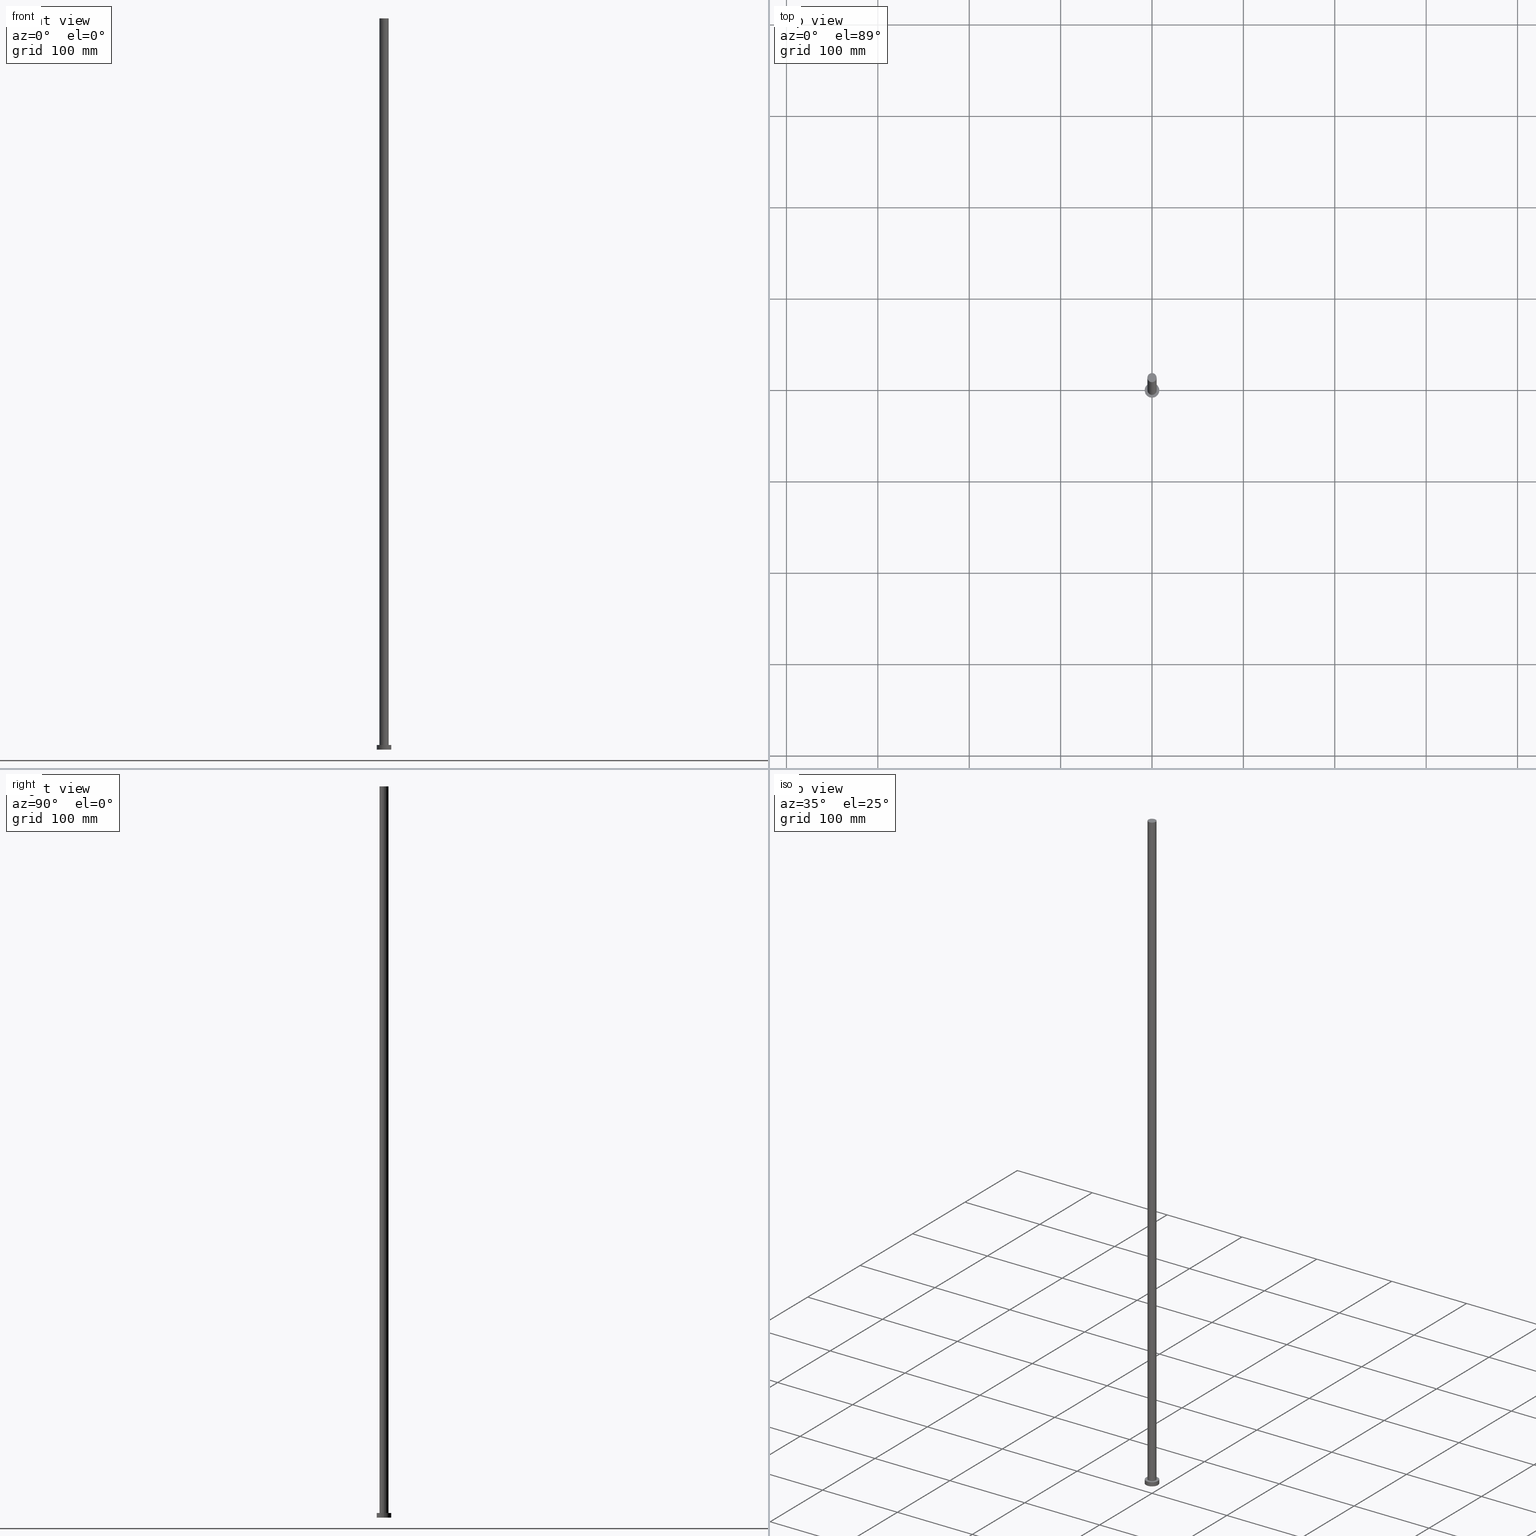
[diagram: canonical four-view strip — front | top / right | iso, engineering-drawing reading convention]
A machine part, canonical four-view strip (front | top / right | iso — engineering-drawing reading convention). The complete STEP part file that produces these views, byte-faithful:
ISO-10303-21;
HEADER;
FILE_DESCRIPTION (( 'STEP AP203' ),
    '1' );
FILE_NAME ('e4b6.STEP',
    '2023-02-13T12:05:35',
    ( '' ),
    ( '' ),
    'SwSTEP 2.0',
    'SolidWorks 2019',
    '' );
FILE_SCHEMA (( 'CONFIG_CONTROL_DESIGN' ));
ENDSEC;

DATA;
#1 = SECURITY_CLASSIFICATION_LEVEL ( 'unclassified' ) ;
#2 = ORIENTED_EDGE ( 'NONE', *, *, #237, .T. ) ;
#3 = DATE_AND_TIME ( #218, #13 ) ;
#4 = APPROVAL_STATUS ( 'not_yet_approved' ) ;
#5 = ORIENTED_EDGE ( 'NONE', *, *, #134, .T. ) ;
#6 = DATE_AND_TIME ( #7, #206 ) ;
#7 = CALENDAR_DATE ( 2023, 13, 2 ) ;
#8 = ADVANCED_FACE ( 'NONE', ( #180 ), #86, .T. ) ;
#9 = VERTEX_POINT ( 'NONE', #63 ) ;
#10 = PRODUCT ( 'e4b6', 'e4b6', '', ( #81 ) ) ;
#11 = DIRECTION ( 'NONE',  ( -1.000000000000000000, 0.000000000000000000, 0.000000000000000000 ) ) ;
#12 = PRODUCT_DEFINITION ( 'NEZN�M�', '', #161, #130 ) ;
#13 = LOCAL_TIME ( 13, 5, 35.00000000000000000, #163 ) ;
#14 = APPROVAL ( #4, 'NEUR�EN�' ) ;
#15 = ORIENTED_EDGE ( 'NONE', *, *, #146, .T. ) ;
#16 = VERTEX_POINT ( 'NONE', #144 ) ;
#17 = DIRECTION ( 'NONE',  ( 1.000000000000000000, 0.000000000000000000, 0.000000000000000000 ) ) ;
#18 = AXIS2_PLACEMENT_3D ( 'NONE', #185, #104, #11 ) ;
#19 = CARTESIAN_POINT ( 'NONE',  ( 8.000000000000000000, 9.797174393178825657E-16, 5.000000000000000000 ) ) ;
#20 = PLANE ( 'NONE',  #165 ) ;
#21 = FACE_OUTER_BOUND ( 'NONE', #36, .T. ) ;
#22 = CC_DESIGN_APPROVAL ( #246, ( #109 ) ) ;
#23 = CARTESIAN_POINT ( 'NONE',  ( -5.000000000000000888, 0.000000000000000000, 800.0000000000000000 ) ) ;
#24 = CALENDAR_DATE ( 2023, 13, 2 ) ;
#25 = DIRECTION ( 'NONE',  ( 0.000000000000000000, 0.000000000000000000, 1.000000000000000000 ) ) ;
#26 = AXIS2_PLACEMENT_3D ( 'NONE', #37, #73, #150 ) ;
#27 = EDGE_LOOP ( 'NONE', ( #65, #226, #248, #168 ) ) ;
#28 = VERTEX_POINT ( 'NONE', #188 ) ;
#29 = APPROVAL ( #102, 'NEUR�EN�' ) ;
#30 = ADVANCED_FACE ( 'NONE', ( #221 ), #46, .F. ) ;
#31 = CYLINDRICAL_SURFACE ( 'NONE', #18, 8.000000000000000000 ) ;
#32 = EDGE_CURVE ( 'NONE', #159, #106, #52, .T. ) ;
#33 = CARTESIAN_POINT ( 'NONE',  ( -8.000000000000000000, 0.000000000000000000, 0.000000000000000000 ) ) ;
#34 = AXIS2_PLACEMENT_3D ( 'NONE', #167, #147, #89 ) ;
#35 = DIRECTION ( 'NONE',  ( -0.000000000000000000, -0.000000000000000000, -1.000000000000000000 ) ) ;
#36 = EDGE_LOOP ( 'NONE', ( #160, #149 ) ) ;
#37 = CARTESIAN_POINT ( 'NONE',  ( 0.000000000000000000, 0.000000000000000000, 5.000000000000000000 ) ) ;
#38 = CC_DESIGN_PERSON_AND_ORGANIZATION_ASSIGNMENT ( #78, #59, ( #109 ) ) ;
#39 = DIRECTION ( 'NONE',  ( -0.000000000000000000, -0.000000000000000000, -1.000000000000000000 ) ) ;
#40 = AXIS2_PLACEMENT_3D ( 'NONE', #47, #124, #205 ) ;
#41 = PERSON_AND_ORGANIZATION ( #219, #76 ) ;
#42 = COORDINATED_UNIVERSAL_TIME_OFFSET ( 1, 0, .AHEAD. ) ;
#43 = CLOSED_SHELL ( 'NONE', ( #8, #53, #69, #172, #30, #183, #125 ) ) ;
#44 = LINE ( 'NONE', #61, #243 ) ;
#45 = PERSON_AND_ORGANIZATION_ROLE ( 'creator' ) ;
#46 = PLANE ( 'NONE',  #96 ) ;
#47 = CARTESIAN_POINT ( 'NONE',  ( 0.000000000000000000, 0.000000000000000000, 5.000000000000000000 ) ) ;
#48 = EDGE_LOOP ( 'NONE', ( #141, #202 ) ) ;
#49 = ORIENTED_EDGE ( 'NONE', *, *, #193, .F. ) ;
#50 = EDGE_CURVE ( 'NONE', #28, #9, #44, .T. ) ;
#51 =( NAMED_UNIT ( * ) PLANE_ANGLE_UNIT ( ) SI_UNIT ( $, .RADIAN. ) );
#52 = CIRCLE ( 'NONE', #34, 8.000000000000000000 ) ;
#53 = ADVANCED_FACE ( 'NONE', ( #120 ), #31, .T. ) ;
#54 = CC_DESIGN_PERSON_AND_ORGANIZATION_ASSIGNMENT ( #119, #45, ( #161 ) ) ;
#55 = DIRECTION ( 'NONE',  ( -0.000000000000000000, -0.000000000000000000, -1.000000000000000000 ) ) ;
#56 = CARTESIAN_POINT ( 'NONE',  ( 0.000000000000000000, 0.000000000000000000, 5.000000000000000000 ) ) ;
#57 = DIRECTION ( 'NONE',  ( 0.000000000000000000, 0.000000000000000000, 1.000000000000000000 ) ) ;
#58 = APPROVAL_PERSON_ORGANIZATION ( #181, #14, #156 ) ;
#59 = PERSON_AND_ORGANIZATION_ROLE ( 'classification_officer' ) ;
#60 = APPLICATION_PROTOCOL_DEFINITION ( 'international standard', 'config_control_design', 1994, #245 ) ;
#61 = CARTESIAN_POINT ( 'NONE',  ( 5.000000000000000888, 6.123233995736767268E-16, 800.0000000000000000 ) ) ;
#62 = DATE_AND_TIME ( #24, #186 ) ;
#63 = CARTESIAN_POINT ( 'NONE',  ( 5.000000000000000888, 6.123233995736767268E-16, 5.000000000000000000 ) ) ;
#64 = EDGE_LOOP ( 'NONE', ( #83, #182, #235, #2 ) ) ;
#65 = ORIENTED_EDGE ( 'NONE', *, *, #146, .F. ) ;
#66 = ORIENTED_EDGE ( 'NONE', *, *, #214, .F. ) ;
#67 = VECTOR ( 'NONE', #176, 1000.000000000000000 ) ;
#68 = CARTESIAN_POINT ( 'NONE',  ( -8.000000000000000000, 0.000000000000000000, 5.000000000000000000 ) ) ;
#69 = ADVANCED_FACE ( 'NONE', ( #223 ), #84, .T. ) ;
#70 = CARTESIAN_POINT ( 'NONE',  ( -8.000000000000000000, 0.000000000000000000, 5.000000000000000000 ) ) ;
#71 = VECTOR ( 'NONE', #209, 1000.000000000000000 ) ;
#72 = LINE ( 'NONE', #70, #71 ) ;
#73 = DIRECTION ( 'NONE',  ( 0.000000000000000000, 0.000000000000000000, 1.000000000000000000 ) ) ;
#74 = PERSON_AND_ORGANIZATION ( #219, #76 ) ;
#75 = VERTEX_POINT ( 'NONE', #33 ) ;
#76 = ORGANIZATION ( 'NEUR�EN�', 'NEUR�EN�', '' ) ;
#77 = PERSON_AND_ORGANIZATION_ROLE ( 'design_supplier' ) ;
#78 = PERSON_AND_ORGANIZATION ( #219, #76 ) ;
#79 = MANIFOLD_SOLID_BREP ( 'P�idat vysunut�m3', #43 ) ;
#80 = VERTEX_POINT ( 'NONE', #105 ) ;
#81 = MECHANICAL_CONTEXT ( 'NONE', #117, 'mechanical' ) ;
#82 = CALENDAR_DATE ( 2023, 13, 2 ) ;
#83 = ORIENTED_EDGE ( 'NONE', *, *, #50, .F. ) ;
#84 = CYLINDRICAL_SURFACE ( 'NONE', #40, 8.000000000000000000 ) ;
#85 = AXIS2_PLACEMENT_3D ( 'NONE', #56, #210, #151 ) ;
#86 = CYLINDRICAL_SURFACE ( 'NONE', #225, 5.000000000000000888 ) ;
#87 = CC_DESIGN_PERSON_AND_ORGANIZATION_ASSIGNMENT ( #234, #197, ( #12 ) ) ;
#88 = CC_DESIGN_DATE_AND_TIME_ASSIGNMENT ( #62, #158, ( #12 ) ) ;
#89 = DIRECTION ( 'NONE',  ( 1.000000000000000000, 0.000000000000000000, 0.000000000000000000 ) ) ;
#90 =( LENGTH_UNIT ( ) NAMED_UNIT ( * ) SI_UNIT ( .MILLI., .METRE. ) );
#91 = LOCAL_TIME ( 13, 5, 35.00000000000000000, #42 ) ;
#92 = DIRECTION ( 'NONE',  ( 0.000000000000000000, 0.000000000000000000, 1.000000000000000000 ) ) ;
#93 = DIRECTION ( 'NONE',  ( 1.000000000000000000, 0.000000000000000000, -0.000000000000000000 ) ) ;
#94 = LINE ( 'NONE', #112, #229 ) ;
#95 = COORDINATED_UNIVERSAL_TIME_OFFSET ( 1, 0, .AHEAD. ) ;
#96 = AXIS2_PLACEMENT_3D ( 'NONE', #166, #123, #204 ) ;
#97 = CALENDAR_DATE ( 2023, 13, 2 ) ;
#98 = EDGE_CURVE ( 'NONE', #75, #16, #190, .T. ) ;
#99 = CC_DESIGN_PERSON_AND_ORGANIZATION_ASSIGNMENT ( #178, #143, ( #10 ) ) ;
#100 = APPROVAL_ROLE ( '' ) ;
#101 = ORIENTED_EDGE ( 'NONE', *, *, #98, .F. ) ;
#102 = APPROVAL_STATUS ( 'not_yet_approved' ) ;
#103 = AXIS2_PLACEMENT_3D ( 'NONE', #133, #170, #135 ) ;
#104 = DIRECTION ( 'NONE',  ( -0.000000000000000000, -0.000000000000000000, -1.000000000000000000 ) ) ;
#105 = CARTESIAN_POINT ( 'NONE',  ( -5.000000000000000888, 0.000000000000000000, 800.0000000000000000 ) ) ;
#106 = VERTEX_POINT ( 'NONE', #19 ) ;
#107 = CARTESIAN_POINT ( 'NONE',  ( 0.000000000000000000, 0.000000000000000000, 5.000000000000000000 ) ) ;
#108 = DIRECTION ( 'NONE',  ( 1.000000000000000000, 0.000000000000000000, 0.000000000000000000 ) ) ;
#109 = SECURITY_CLASSIFICATION ( '', '', #1 ) ;
#110 = APPLICATION_PROTOCOL_DEFINITION ( 'international standard', 'config_control_design', 1994, #117 ) ;
#111 = CARTESIAN_POINT ( 'NONE',  ( 0.000000000000000000, 0.000000000000000000, 800.0000000000000000 ) ) ;
#112 = CARTESIAN_POINT ( 'NONE',  ( 8.000000000000000000, 9.797174393178825657E-16, 5.000000000000000000 ) ) ;
#113 = EDGE_CURVE ( 'NONE', #159, #75, #72, .T. ) ;
#114 = AXIS2_PLACEMENT_3D ( 'NONE', #155, #191, #231 ) ;
#115 = CC_DESIGN_PERSON_AND_ORGANIZATION_ASSIGNMENT ( #41, #77, ( #161 ) ) ;
#116 = APPROVAL_ROLE ( '' ) ;
#117 = APPLICATION_CONTEXT ( 'configuration controlled 3d designs of mechanical parts and assemblies' ) ;
#118 = DATE_TIME_ROLE ( 'classification_date' ) ;
#119 = PERSON_AND_ORGANIZATION ( #219, #76 ) ;
#120 = FACE_OUTER_BOUND ( 'NONE', #148, .T. ) ;
#121 = PERSON_AND_ORGANIZATION ( #219, #76 ) ;
#122 = CC_DESIGN_SECURITY_CLASSIFICATION ( #109, ( #161 ) ) ;
#123 = DIRECTION ( 'NONE',  ( 0.000000000000000000, 0.000000000000000000, 1.000000000000000000 ) ) ;
#124 = DIRECTION ( 'NONE',  ( -0.000000000000000000, -0.000000000000000000, -1.000000000000000000 ) ) ;
#125 = ADVANCED_FACE ( 'NONE', ( #232 ), #20, .T. ) ;
#126 = LOCAL_TIME ( 13, 5, 35.00000000000000000, #139 ) ;
#127 = ORIENTED_EDGE ( 'NONE', *, *, #162, .F. ) ;
#128 = ADVANCED_BREP_SHAPE_REPRESENTATION ( 'e4b6', ( #79, #233 ), #169 ) ;
#129 = ORIENTED_EDGE ( 'NONE', *, *, #193, .T. ) ;
#130 = DESIGN_CONTEXT ( 'detailed design', #245, 'design' ) ;
#131 =( NAMED_UNIT ( * ) SI_UNIT ( $, .STERADIAN. ) SOLID_ANGLE_UNIT ( ) );
#132 = DIRECTION ( 'NONE',  ( 0.000000000000000000, 0.000000000000000000, 1.000000000000000000 ) ) ;
#133 = CARTESIAN_POINT ( 'NONE',  ( 0.000000000000000000, 0.000000000000000000, 800.0000000000000000 ) ) ;
#134 = EDGE_CURVE ( 'NONE', #80, #28, #184, .T. ) ;
#135 = DIRECTION ( 'NONE',  ( 1.000000000000000000, 0.000000000000000000, 0.000000000000000000 ) ) ;
#136 = AXIS2_PLACEMENT_3D ( 'NONE', #107, #228, #17 ) ;
#137 = SHAPE_DEFINITION_REPRESENTATION ( #222, #128 ) ;
#138 = ORIENTED_EDGE ( 'NONE', *, *, #162, .T. ) ;
#139 = COORDINATED_UNIVERSAL_TIME_OFFSET ( 1, 0, .AHEAD. ) ;
#140 = APPROVAL_DATE_TIME ( #6, #14 ) ;
#141 = ORIENTED_EDGE ( 'NONE', *, *, #237, .F. ) ;
#142 = AXIS2_PLACEMENT_3D ( 'NONE', #189, #39, #152 ) ;
#143 = PERSON_AND_ORGANIZATION_ROLE ( 'design_owner' ) ;
#144 = CARTESIAN_POINT ( 'NONE',  ( 8.000000000000000000, 9.797174393178825657E-16, 0.000000000000000000 ) ) ;
#145 = PRODUCT_RELATED_PRODUCT_CATEGORY ( 'detail', '', ( #10 ) ) ;
#146 = EDGE_CURVE ( 'NONE', #28, #80, #220, .T. ) ;
#147 = DIRECTION ( 'NONE',  ( 0.000000000000000000, 0.000000000000000000, 1.000000000000000000 ) ) ;
#148 = EDGE_LOOP ( 'NONE', ( #66, #129, #138, #164 ) ) ;
#149 = ORIENTED_EDGE ( 'NONE', *, *, #214, .T. ) ;
#150 = DIRECTION ( 'NONE',  ( 1.000000000000000000, 0.000000000000000000, 0.000000000000000000 ) ) ;
#151 = DIRECTION ( 'NONE',  ( 1.000000000000000000, 0.000000000000000000, -0.000000000000000000 ) ) ;
#152 = DIRECTION ( 'NONE',  ( -1.000000000000000000, 0.000000000000000000, 0.000000000000000000 ) ) ;
#153 = CC_DESIGN_APPROVAL ( #29, ( #12 ) ) ;
#154 = CARTESIAN_POINT ( 'NONE',  ( 0.000000000000000000, 0.000000000000000000, 0.000000000000000000 ) ) ;
#155 = CARTESIAN_POINT ( 'NONE',  ( 0.000000000000000000, 0.000000000000000000, 0.000000000000000000 ) ) ;
#156 = APPROVAL_ROLE ( '' ) ;
#157 = APPROVAL_PERSON_ORGANIZATION ( #74, #29, #100 ) ;
#158 = DATE_TIME_ROLE ( 'creation_date' ) ;
#159 = VERTEX_POINT ( 'NONE', #68 ) ;
#160 = ORIENTED_EDGE ( 'NONE', *, *, #32, .T. ) ;
#161 = PRODUCT_DEFINITION_FORMATION_WITH_SPECIFIED_SOURCE ( 'LIBOVOLN�', '', #10, .NOT_KNOWN. ) ;
#162 = EDGE_CURVE ( 'NONE', #16, #75, #199, .T. ) ;
#163 = COORDINATED_UNIVERSAL_TIME_OFFSET ( 1, 0, .AHEAD. ) ;
#164 = ORIENTED_EDGE ( 'NONE', *, *, #113, .F. ) ;
#165 = AXIS2_PLACEMENT_3D ( 'NONE', #252, #57, #93 ) ;
#166 = CARTESIAN_POINT ( 'NONE',  ( 0.000000000000000000, 0.000000000000000000, 0.000000000000000000 ) ) ;
#167 = CARTESIAN_POINT ( 'NONE',  ( 0.000000000000000000, 0.000000000000000000, 5.000000000000000000 ) ) ;
#168 = ORIENTED_EDGE ( 'NONE', *, *, #201, .F. ) ;
#169 =( GEOMETRIC_REPRESENTATION_CONTEXT ( 3 ) GLOBAL_UNCERTAINTY_ASSIGNED_CONTEXT ( ( #251 ) ) GLOBAL_UNIT_ASSIGNED_CONTEXT ( ( #90, #51, #131 ) ) REPRESENTATION_CONTEXT ( 'NONE', 'WORKASPACE' ) );
#170 = DIRECTION ( 'NONE',  ( 0.000000000000000000, 0.000000000000000000, 1.000000000000000000 ) ) ;
#171 = FACE_BOUND ( 'NONE', #48, .T. ) ;
#172 = ADVANCED_FACE ( 'NONE', ( #171, #21 ), #250, .T. ) ;
#173 = CARTESIAN_POINT ( 'NONE',  ( 0.000000000000000000, 0.000000000000000000, 5.000000000000000000 ) ) ;
#174 = CIRCLE ( 'NONE', #26, 5.000000000000000888 ) ;
#175 = AXIS2_PLACEMENT_3D ( 'NONE', #173, #132, #195 ) ;
#176 = DIRECTION ( 'NONE',  ( -0.000000000000000000, -0.000000000000000000, -1.000000000000000000 ) ) ;
#177 = DATE_AND_TIME ( #97, #91 ) ;
#178 = PERSON_AND_ORGANIZATION ( #219, #76 ) ;
#179 = APPROVAL_PERSON_ORGANIZATION ( #121, #246, #116 ) ;
#180 = FACE_OUTER_BOUND ( 'NONE', #27, .T. ) ;
#181 = PERSON_AND_ORGANIZATION ( #219, #76 ) ;
#182 = ORIENTED_EDGE ( 'NONE', *, *, #134, .F. ) ;
#183 = ADVANCED_FACE ( 'NONE', ( #211 ), #227, .T. ) ;
#184 = CIRCLE ( 'NONE', #241, 5.000000000000000888 ) ;
#185 = CARTESIAN_POINT ( 'NONE',  ( 0.000000000000000000, 0.000000000000000000, 5.000000000000000000 ) ) ;
#186 = LOCAL_TIME ( 13, 5, 35.00000000000000000, #196 ) ;
#187 = VERTEX_POINT ( 'NONE', #230 ) ;
#188 = CARTESIAN_POINT ( 'NONE',  ( 5.000000000000000888, 6.123233995736767268E-16, 800.0000000000000000 ) ) ;
#189 = CARTESIAN_POINT ( 'NONE',  ( 0.000000000000000000, 0.000000000000000000, 800.0000000000000000 ) ) ;
#190 = CIRCLE ( 'NONE', #114, 8.000000000000000000 ) ;
#191 = DIRECTION ( 'NONE',  ( 0.000000000000000000, 0.000000000000000000, 1.000000000000000000 ) ) ;
#192 = CC_DESIGN_DATE_AND_TIME_ASSIGNMENT ( #215, #118, ( #109 ) ) ;
#193 = EDGE_CURVE ( 'NONE', #106, #16, #94, .T. ) ;
#194 = DIRECTION ( 'NONE',  ( 0.000000000000000000, 0.000000000000000000, 1.000000000000000000 ) ) ;
#195 = DIRECTION ( 'NONE',  ( 1.000000000000000000, 0.000000000000000000, 0.000000000000000000 ) ) ;
#196 = COORDINATED_UNIVERSAL_TIME_OFFSET ( 1, 0, .AHEAD. ) ;
#197 = PERSON_AND_ORGANIZATION_ROLE ( 'creator' ) ;
#198 = APPROVAL_STATUS ( 'not_yet_approved' ) ;
#199 = CIRCLE ( 'NONE', #254, 8.000000000000000000 ) ;
#200 = DIRECTION ( 'NONE',  ( 1.000000000000000000, 0.000000000000000000, 0.000000000000000000 ) ) ;
#201 = EDGE_CURVE ( 'NONE', #80, #187, #212, .T. ) ;
#202 = ORIENTED_EDGE ( 'NONE', *, *, #236, .F. ) ;
#203 = CC_DESIGN_APPROVAL ( #14, ( #161 ) ) ;
#204 = DIRECTION ( 'NONE',  ( 1.000000000000000000, 0.000000000000000000, -0.000000000000000000 ) ) ;
#205 = DIRECTION ( 'NONE',  ( -1.000000000000000000, 0.000000000000000000, 0.000000000000000000 ) ) ;
#206 = LOCAL_TIME ( 13, 5, 35.00000000000000000, #95 ) ;
#207 = EDGE_LOOP ( 'NONE', ( #5, #15 ) ) ;
#208 = ORIENTED_EDGE ( 'NONE', *, *, #32, .F. ) ;
#209 = DIRECTION ( 'NONE',  ( -0.000000000000000000, -0.000000000000000000, -1.000000000000000000 ) ) ;
#210 = DIRECTION ( 'NONE',  ( 0.000000000000000000, 0.000000000000000000, 1.000000000000000000 ) ) ;
#211 = FACE_OUTER_BOUND ( 'NONE', #64, .T. ) ;
#212 = LINE ( 'NONE', #23, #67 ) ;
#213 = CIRCLE ( 'NONE', #175, 8.000000000000000000 ) ;
#214 = EDGE_CURVE ( 'NONE', #106, #159, #213, .T. ) ;
#215 = DATE_AND_TIME ( #82, #126 ) ;
#216 = APPROVAL_DATE_TIME ( #3, #29 ) ;
#217 = DIRECTION ( 'NONE',  ( -1.000000000000000000, 0.000000000000000000, 0.000000000000000000 ) ) ;
#218 = CALENDAR_DATE ( 2023, 13, 2 ) ;
#219 = PERSON ( 'NEUR�EN�', 'NEUR�EN�', 'NEUR�EN�', ('NEUR�EN�'), ('NEUR�EN�'), ('NEUR�EN�') ) ;
#220 = CIRCLE ( 'NONE', #103, 5.000000000000000888 ) ;
#221 = FACE_OUTER_BOUND ( 'NONE', #247, .T. ) ;
#222 = PRODUCT_DEFINITION_SHAPE ( 'NONE', 'NONE',  #12 ) ;
#223 = FACE_OUTER_BOUND ( 'NONE', #224, .T. ) ;
#224 = EDGE_LOOP ( 'NONE', ( #49, #208, #239, #253 ) ) ;
#225 = AXIS2_PLACEMENT_3D ( 'NONE', #242, #35, #217 ) ;
#226 = ORIENTED_EDGE ( 'NONE', *, *, #50, .T. ) ;
#227 = CYLINDRICAL_SURFACE ( 'NONE', #142, 5.000000000000000888 ) ;
#228 = DIRECTION ( 'NONE',  ( 0.000000000000000000, 0.000000000000000000, 1.000000000000000000 ) ) ;
#229 = VECTOR ( 'NONE', #55, 1000.000000000000000 ) ;
#230 = CARTESIAN_POINT ( 'NONE',  ( -5.000000000000000888, 0.000000000000000000, 5.000000000000000000 ) ) ;
#231 = DIRECTION ( 'NONE',  ( 1.000000000000000000, 0.000000000000000000, 0.000000000000000000 ) ) ;
#232 = FACE_OUTER_BOUND ( 'NONE', #207, .T. ) ;
#233 = AXIS2_PLACEMENT_3D ( 'NONE', #238, #25, #200 ) ;
#234 = PERSON_AND_ORGANIZATION ( #219, #76 ) ;
#235 = ORIENTED_EDGE ( 'NONE', *, *, #201, .T. ) ;
#236 = EDGE_CURVE ( 'NONE', #9, #187, #174, .T. ) ;
#237 = EDGE_CURVE ( 'NONE', #187, #9, #249, .T. ) ;
#238 = CARTESIAN_POINT ( 'NONE',  ( 0.000000000000000000, 0.000000000000000000, 0.000000000000000000 ) ) ;
#239 = ORIENTED_EDGE ( 'NONE', *, *, #113, .T. ) ;
#240 = APPROVAL_DATE_TIME ( #177, #246 ) ;
#241 = AXIS2_PLACEMENT_3D ( 'NONE', #111, #194, #255 ) ;
#242 = CARTESIAN_POINT ( 'NONE',  ( 0.000000000000000000, 0.000000000000000000, 800.0000000000000000 ) ) ;
#243 = VECTOR ( 'NONE', #244, 1000.000000000000000 ) ;
#244 = DIRECTION ( 'NONE',  ( -0.000000000000000000, -0.000000000000000000, -1.000000000000000000 ) ) ;
#245 = APPLICATION_CONTEXT ( 'configuration controlled 3d designs of mechanical parts and assemblies' ) ;
#246 = APPROVAL ( #198, 'NEUR�EN�' ) ;
#247 = EDGE_LOOP ( 'NONE', ( #101, #127 ) ) ;
#248 = ORIENTED_EDGE ( 'NONE', *, *, #236, .T. ) ;
#249 = CIRCLE ( 'NONE', #136, 5.000000000000000888 ) ;
#250 = PLANE ( 'NONE',  #85 ) ;
#251 = UNCERTAINTY_MEASURE_WITH_UNIT (LENGTH_MEASURE( 1.000000000000000082E-05 ), #90, 'distance_accuracy_value', 'NONE');
#252 = CARTESIAN_POINT ( 'NONE',  ( 0.000000000000000000, 0.000000000000000000, 800.0000000000000000 ) ) ;
#253 = ORIENTED_EDGE ( 'NONE', *, *, #98, .T. ) ;
#254 = AXIS2_PLACEMENT_3D ( 'NONE', #154, #92, #108 ) ;
#255 = DIRECTION ( 'NONE',  ( 1.000000000000000000, 0.000000000000000000, 0.000000000000000000 ) ) ;
ENDSEC;
END-ISO-10303-21;
